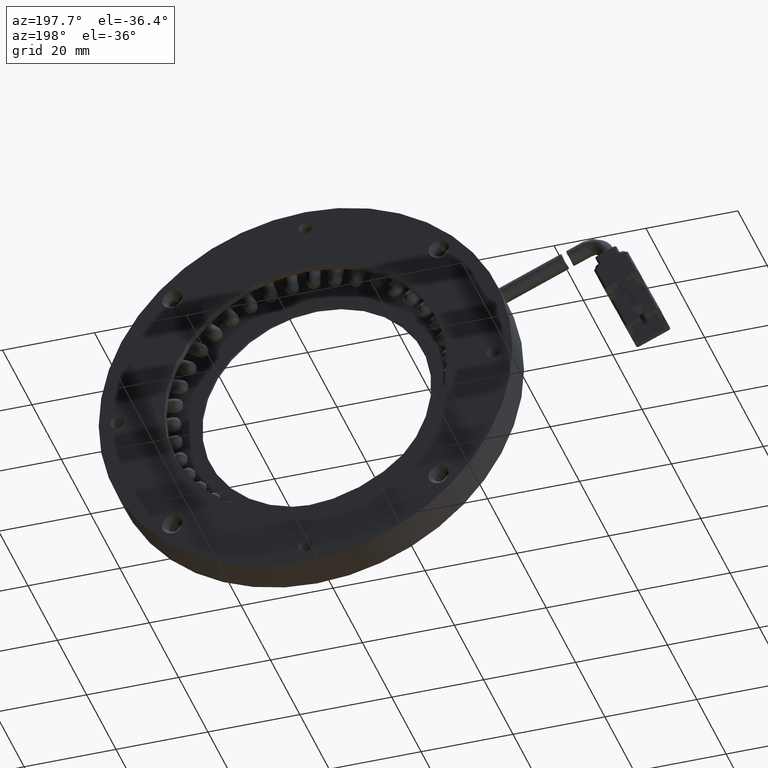
[diagram: clean part render]
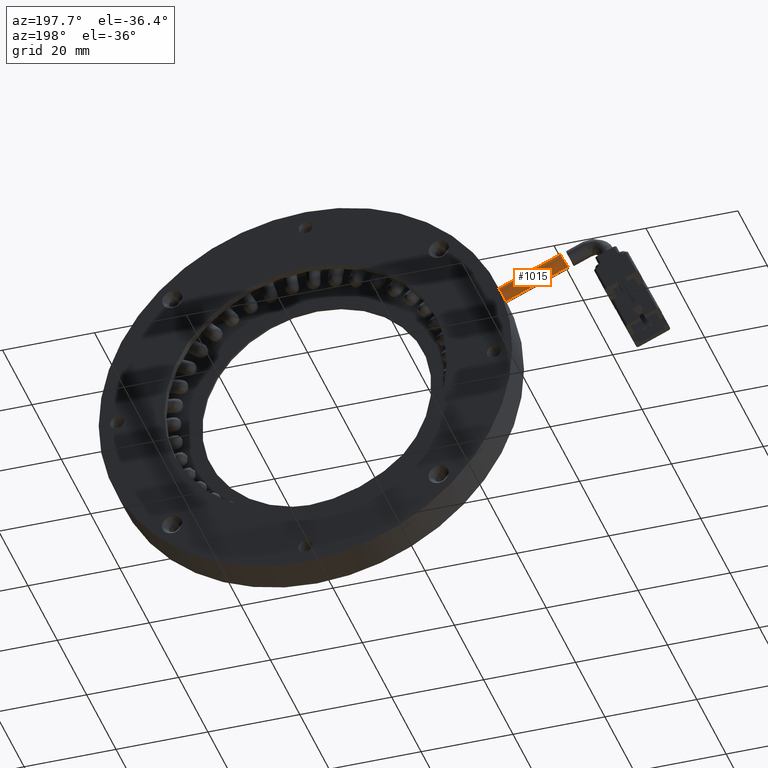
[diagram: same view with one face highlighted and labeled with its STEP entity id]
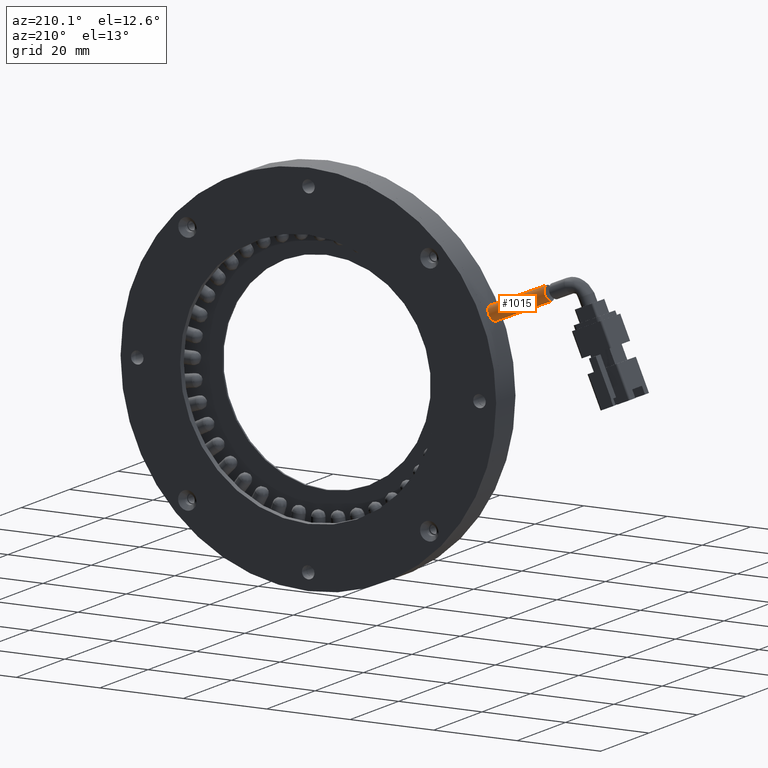
[diagram: same view with one face highlighted and labeled with its STEP entity id]
A machine part, auxiliary view. The second image highlights one B-rep face of the part: STEP entity #1015.
A second angle (auxiliary view) of the same face is appended — the face is thin or edge-on in the first view.
In plain terms, the highlighted cylindrical surface (edge-blend (fillet) strip) has radius 1.75 mm, axis along (0.9191, 0, -0.394).
Its self-contained STEP definition (entity closure, byte-faithful):
#266 = VERTEX_POINT ( 'NONE', #20220 ) ;
#1015 = ADVANCED_FACE ( 'NONE', ( #11990 ), #16331, .T. ) ;
#3245 = VERTEX_POINT ( 'NONE', #35357 ) ;
#3381 = EDGE_CURVE ( 'NONE', #3245, #14625, #26712, .T. ) ;
#3838 = CARTESIAN_POINT ( 'NONE',  ( -51.91339903144178400, 3.400432959520886200, 22.07619153255388500 ) ) ;
#4938 = EDGE_CURVE ( 'NONE', #14625, #11873, #32798, .T. ) ;
#5027 = ORIENTED_EDGE ( 'NONE', *, *, #4938, .T. ) ;
#5109 = CARTESIAN_POINT ( 'NONE',  ( -55.48046830470935500, 2.623552123552121100, 27.22013914971745100 ) ) ;
#6122 = LINE ( 'NONE', #32379, #13327 ) ;
#6272 = DIRECTION ( 'NONE',  ( 0.9190991241167713000, 4.506924669917426200E-032, -0.3940263951155857900 ) ) ;
#7418 = ORIENTED_EDGE ( 'NONE', *, *, #3381, .T. ) ;
#8133 = ORIENTED_EDGE ( 'NONE', *, *, #26667, .F. ) ;
#10820 = ORIENTED_EDGE ( 'NONE', *, *, #16577, .T. ) ;
#11567 = AXIS2_PLACEMENT_3D ( 'NONE', #16929, #38543, #19975 ) ;
#11873 = VERTEX_POINT ( 'NONE', #33397 ) ;
#11924 = CARTESIAN_POINT ( 'NONE',  ( -50.68354285804238700, 2.623552123552122000, 25.16365232278814900 ) ) ;
#11990 = FACE_OUTER_BOUND ( 'NONE', #29312, .T. ) ;
#13327 = VECTOR ( 'NONE', #16841, 1000.000000000000100 ) ;
#14625 = VERTEX_POINT ( 'NONE', #11924 ) ;
#16331 = CYLINDRICAL_SURFACE ( 'NONE', #33771, 1.750000000000000200 ) ;
#16577 = EDGE_CURVE ( 'NONE', #11873, #266, #21700, .T. ) ;
#16841 = DIRECTION ( 'NONE',  ( 0.9190991241167713000, 4.506924669917426200E-032, -0.3940263951155857900 ) ) ;
#16929 = CARTESIAN_POINT ( 'NONE',  ( -37.78803201382620400, 2.623552123552121100, 17.73118778020138500 ) ) ;
#19975 = DIRECTION ( 'NONE',  ( -0.3940263951155867400, 0.0000000000000000000, -0.9190991241167709700 ) ) ;
#20220 = CARTESIAN_POINT ( 'NONE',  ( -38.47757820527847600, 2.623552123552121100, 16.12276431299703500 ) ) ;
#21700 = CIRCLE ( 'NONE', #11567, 1.750000000000000200 ) ;
#22066 = CARTESIAN_POINT ( 'NONE',  ( -50.68354285804238700, 2.623552123552122000, 25.16365232278814900 ) ) ;
#22335 = CARTESIAN_POINT ( 'NONE',  ( -50.68354285804238700, 2.855648492951804700, 25.16365232278815600 ) ) ;
#22470 = CARTESIAN_POINT ( 'NONE',  ( -50.69304685348983200, 3.084598926725629300, 25.11727410708864400 ) ) ;
#22607 = CARTESIAN_POINT ( 'NONE',  ( -50.72156138352382000, 3.401653950062915500, 24.98592944065238800 ) ) ;
#22873 = CARTESIAN_POINT ( 'NONE',  ( -50.73364196432075300, 3.504230445651584300, 24.93111860873579700 ) ) ;
#23206 = CARTESIAN_POINT ( 'NONE',  ( -50.76235086636307200, 3.693439494662154500, 24.80525033823802200 ) ) ;
#23346 = CARTESIAN_POINT ( 'NONE',  ( -50.77905195592600100, 3.781294563751199400, 24.73381359266208400 ) ) ;
#23477 = CARTESIAN_POINT ( 'NONE',  ( -50.83767736712749000, 4.024326264417899400, 24.49395965322013100 ) ) ;
#23623 = CARTESIAN_POINT ( 'NONE',  ( -50.88664316217837300, 4.152595270316706600, 24.30593176846772300 ) ) ;
#23747 = CARTESIAN_POINT ( 'NONE',  ( -50.97798014647026600, 4.284397213907926300, 23.99870394609189400 ) ) ;
#24017 = CARTESIAN_POINT ( 'NONE',  ( -51.01083291513016600, 4.317453248985406100, 23.89407051512579400 ) ) ;
#24276 = CARTESIAN_POINT ( 'NONE',  ( -51.08243120388555500, 4.362143047376791900, 23.68079705428054300 ) ) ;
#24413 = CARTESIAN_POINT ( 'NONE',  ( -51.12160297210088800, 4.373609626307584500, 23.57114370255737200 ) ) ;
#24538 = CARTESIAN_POINT ( 'NONE',  ( -51.24479973381701800, 4.373436452036957100, 23.24989425730936400 ) ) ;
#24680 = CARTESIAN_POINT ( 'NONE',  ( -51.33794881800745500, 4.327029166759545300, 23.03831437153674200 ) ) ;
#24810 = CARTESIAN_POINT ( 'NONE',  ( -51.52854599741278500, 4.151761377034084400, 22.66147633238240300 ) ) ;
#24957 = CARTESIAN_POINT ( 'NONE',  ( -51.62796610866181600, 4.021103507195338300, 22.49215564593888300 ) ) ;
#25105 = CARTESIAN_POINT ( 'NONE',  ( -51.76135238317841900, 3.779915244068334300, 22.28720865200320800 ) ) ;
#25233 = CARTESIAN_POINT ( 'NONE',  ( -51.80399906119732400, 3.690427239665659000, 22.22558068466357300 ) ) ;
#25502 = CARTESIAN_POINT ( 'NONE',  ( -51.87994728830155100, 3.500653698394505100, 22.12022962972970300 ) ) ;
#26011 = CARTESIAN_POINT ( 'NONE',  ( -51.96921446681557900, 3.189003677493008400, 22.00458936101550800 ) ) ;
#26184 = CARTESIAN_POINT ( 'NONE',  ( -51.99136475717968900, 3.077731760790817900, 21.97729636778199600 ) ) ;
#26452 = CARTESIAN_POINT ( 'NONE',  ( -52.02083531996714100, 2.853635594878648700, 21.94132469740720000 ) ) ;
#26667 = EDGE_CURVE ( 'NONE', #3245, #266, #6122, .T. ) ;
#26712 = B_SPLINE_CURVE_WITH_KNOTS ( 'NONE', 3,
 ( #29969, #29318, #26452, #26184, #26011, #3838, #25502, #25233, #25105, #24957, #24810, #24680, #24538, #24413, #24276, #24017, #23747, #23623, #23477, #23346, #23206, #22873, #22607, #22470, #22335, #22066 ),
 .UNSPECIFIED., .F., .F.,
 ( 4, 2, 2, 2, 2, 2, 2, 2, 2, 2, 2, 2, 4 ),
 ( 0.005490571999675061100, 0.005833718808239156000, 0.006176865616803251000, 0.006520012425367345000, 0.006863159233931439900, 0.007549452851059621100, 0.008235746468187803100, 0.008578893276751887700, 0.008922040085315973900, 0.009608333702444130800, 0.009951480511008210100, 0.01029462731957228800, 0.01098092093670044500 ),
 .UNSPECIFIED. ) ;
#29312 = EDGE_LOOP ( 'NONE', ( #7418, #5027, #10820, #8133 ) ) ;
#29318 = CARTESIAN_POINT ( 'NONE',  ( -52.02851782803413300, 2.739628390539639500, 21.93217893420495600 ) ) ;
#29969 = CARTESIAN_POINT ( 'NONE',  ( -52.02851782803413300, 2.623552123552121100, 21.93217893420495200 ) ) ;
#30091 = CARTESIAN_POINT ( 'NONE',  ( -56.17001449616162700, 2.623552123552121100, 25.61171568251310000 ) ) ;
#31840 = VECTOR ( 'NONE', #6272, 1000.000000000000100 ) ;
#32379 = CARTESIAN_POINT ( 'NONE',  ( -56.85956068761390700, 2.623552123552121100, 24.00329221530875400 ) ) ;
#32798 = LINE ( 'NONE', #5109, #31840 ) ;
#33319 = DIRECTION ( 'NONE',  ( -0.3940263951155867400, 0.0000000000000000000, -0.9190991241167709700 ) ) ;
#33397 = CARTESIAN_POINT ( 'NONE',  ( -37.09848582237392400, 2.623552123552121100, 19.33961124740573500 ) ) ;
#33771 = AXIS2_PLACEMENT_3D ( 'NONE', #30091, #33843, #33319 ) ;
#33843 = DIRECTION ( 'NONE',  ( 0.9190991241167714200, 4.506924669917426800E-032, -0.3940263951155858500 ) ) ;
#35357 = CARTESIAN_POINT ( 'NONE',  ( -52.02851782803413300, 2.623552123552121100, 21.93217893420495200 ) ) ;
#38543 = DIRECTION ( 'NONE',  ( -0.9190991241167714200, -4.506924669917426800E-032, 0.3940263951155858500 ) ) ;